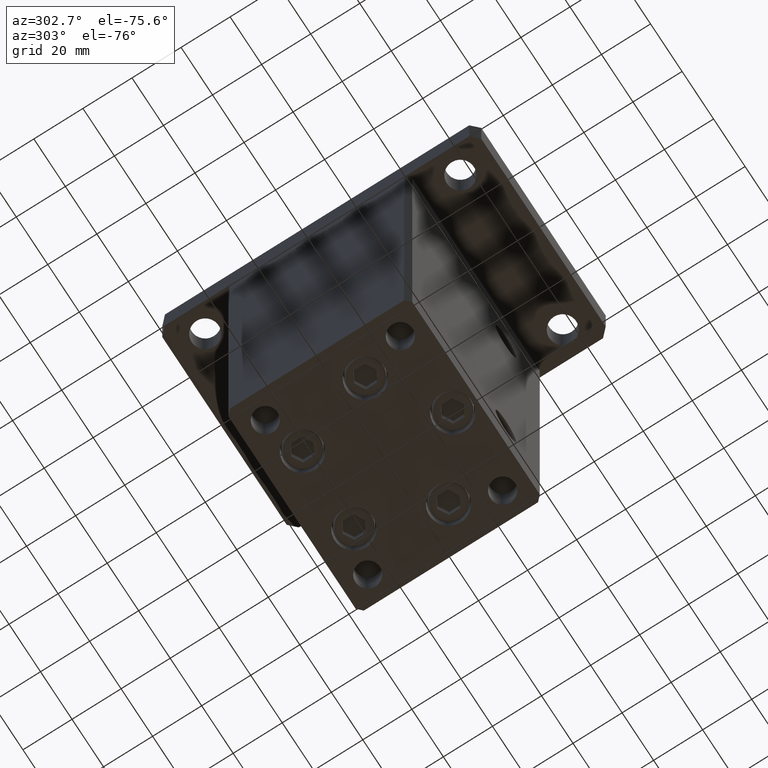
[diagram: clean part render]
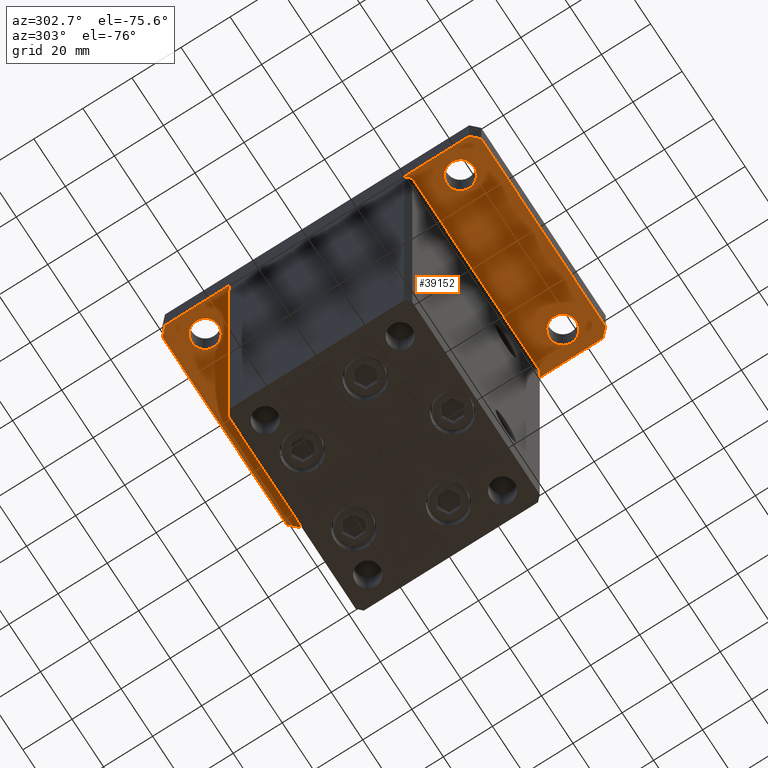
[diagram: same view with one face highlighted and labeled with its STEP entity id]
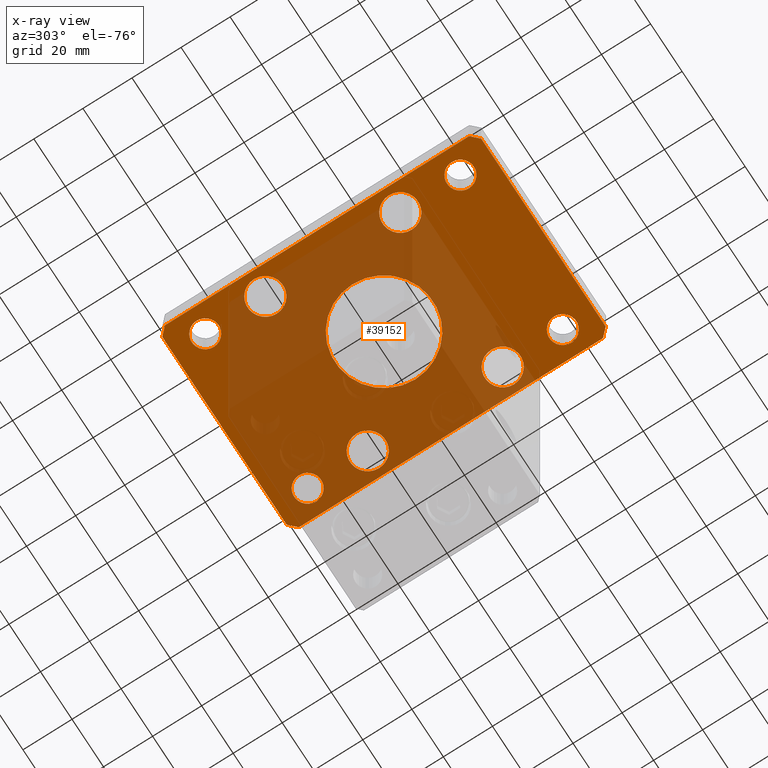
[diagram: x-ray of the same camera — body ghosted, the highlighted face saturated]
A machine part, auxiliary view. The second image highlights one B-rep face of the part: STEP entity #39152.
The next image is the same camera in x-ray: the body ghosted, the highlighted face saturated — about 60% of this face is hidden behind the body in this view.
In plain terms, the highlighted planar face has unit normal (0, 0, 1).
Its self-contained STEP definition (entity closure, byte-faithful):
#19 = VECTOR ( 'NONE', #7143, 1000.000000000000000 ) ;
#65 = AXIS2_PLACEMENT_3D ( 'NONE', #47039, #43976, #22334 ) ;
#127 = EDGE_CURVE ( 'NONE', #19768, #1830, #7025, .T. ) ;
#265 = VERTEX_POINT ( 'NONE', #36979 ) ;
#565 = EDGE_CURVE ( 'NONE', #48855, #39810, #50354, .T. ) ;
#628 = DIRECTION ( 'NONE',  ( 0.000000000000000000, 0.000000000000000000, 1.000000000000000000 ) ) ;
#707 = CARTESIAN_POINT ( 'NONE',  ( -32.50000000000000711, 27.50000000000000000, 0.000000000000000000 ) ) ;
#854 = DIRECTION ( 'NONE',  ( 0.000000000000000000, 0.000000000000000000, -1.000000000000000000 ) ) ;
#901 = EDGE_CURVE ( 'NONE', #13390, #23110, #33889, .T. ) ;
#945 = AXIS2_PLACEMENT_3D ( 'NONE', #18526, #23388, #14714 ) ;
#1048 = VERTEX_POINT ( 'NONE', #31906 ) ;
#1206 = LINE ( 'NONE', #4735, #49276 ) ;
#1710 = EDGE_CURVE ( 'NONE', #48208, #8354, #1879, .T. ) ;
#1830 = VERTEX_POINT ( 'NONE', #51775 ) ;
#1879 = CIRCLE ( 'NONE', #46050, 7.249999999999999112 ) ;
#2310 = LINE ( 'NONE', #42999, #30860 ) ;
#2852 = EDGE_LOOP ( 'NONE', ( #25771, #3525 ) ) ;
#2888 = ORIENTED_EDGE ( 'NONE', *, *, #8356, .F. ) ;
#3035 = CARTESIAN_POINT ( 'NONE',  ( -27.00000000000000711, 52.00000000000000000, 0.000000000000000000 ) ) ;
#3389 = FACE_BOUND ( 'NONE', #2852, .T. ) ;
#3525 = ORIENTED_EDGE ( 'NONE', *, *, #7722, .T. ) ;
#3640 = EDGE_LOOP ( 'NONE', ( #12136, #36797 ) ) ;
#3911 = CIRCLE ( 'NONE', #35073, 7.249999999999999112 ) ;
#4021 = DIRECTION ( 'NONE',  ( 1.000000000000000000, 0.000000000000000000, 0.000000000000000000 ) ) ;
#4322 = CARTESIAN_POINT ( 'NONE',  ( 42.50000000000000000, -61.99999999999988631, 0.000000000000000000 ) ) ;
#4421 = DIRECTION ( 'NONE',  ( 1.000000000000000000, 0.000000000000000000, 0.000000000000000000 ) ) ;
#4518 = VERTEX_POINT ( 'NONE', #15258 ) ;
#4613 = EDGE_CURVE ( 'NONE', #13335, #43913, #34741, .T. ) ;
#4735 = CARTESIAN_POINT ( 'NONE',  ( -42.50000000000002132, 62.00000000000000711, 0.000000000000000000 ) ) ;
#5045 = ORIENTED_EDGE ( 'NONE', *, *, #4613, .F. ) ;
#5390 = ORIENTED_EDGE ( 'NONE', *, *, #565, .F. ) ;
#5427 = DIRECTION ( 'NONE',  ( 0.000000000000000000, 0.000000000000000000, 1.000000000000000000 ) ) ;
#5589 = AXIS2_PLACEMENT_3D ( 'NONE', #12123, #36545, #19973 ) ;
#6302 = CARTESIAN_POINT ( 'NONE',  ( -37.99999999999997868, -52.00000000000000711, 0.000000000000000000 ) ) ;
#6339 = ORIENTED_EDGE ( 'NONE', *, *, #28293, .T. ) ;
#6950 = VERTEX_POINT ( 'NONE', #4322 ) ;
#7025 = CIRCLE ( 'NONE', #11370, 7.249999999999999112 ) ;
#7043 = ORIENTED_EDGE ( 'NONE', *, *, #19839, .F. ) ;
#7143 = DIRECTION ( 'NONE',  ( 0.000000000000000000, 1.000000000000000000, 0.000000000000000000 ) ) ;
#7340 = DIRECTION ( 'NONE',  ( 0.000000000000000000, 0.000000000000000000, 1.000000000000000000 ) ) ;
#7722 = EDGE_CURVE ( 'NONE', #265, #33820, #3911, .T. ) ;
#7727 = VERTEX_POINT ( 'NONE', #32813 ) ;
#7874 = CARTESIAN_POINT ( 'NONE',  ( 32.50000000000000000, -27.50000000000000000, 0.000000000000000000 ) ) ;
#8354 = VERTEX_POINT ( 'NONE', #19413 ) ;
#8356 = EDGE_CURVE ( 'NONE', #43913, #39891, #19937, .T. ) ;
#8920 = ORIENTED_EDGE ( 'NONE', *, *, #37833, .F. ) ;
#9107 = AXIS2_PLACEMENT_3D ( 'NONE', #17676, #50241, #22005 ) ;
#9677 = EDGE_CURVE ( 'NONE', #23738, #48242, #1206, .T. ) ;
#10174 = DIRECTION ( 'NONE',  ( 1.000000000000000000, 1.405345600791337191E-15, 0.000000000000000000 ) ) ;
#10376 = CIRCLE ( 'NONE', #51956, 7.249999999999999112 ) ;
#10710 = CARTESIAN_POINT ( 'NONE',  ( 0.000000000000000000, 0.000000000000000000, 0.000000000000000000 ) ) ;
#11126 = ORIENTED_EDGE ( 'NONE', *, *, #42077, .F. ) ;
#11370 = AXIS2_PLACEMENT_3D ( 'NONE', #38084, #26138, #21798 ) ;
#12019 = EDGE_LOOP ( 'NONE', ( #8920, #11126, #12978, #15604, #2888, #5045, #32016, #17187 ) ) ;
#12110 = VECTOR ( 'NONE', #24458, 1000.000000000000000 ) ;
#12123 = CARTESIAN_POINT ( 'NONE',  ( -32.50000000000000711, 27.50000000000000000, 0.000000000000000000 ) ) ;
#12136 = ORIENTED_EDGE ( 'NONE', *, *, #14207, .T. ) ;
#12223 = VERTEX_POINT ( 'NONE', #28214 ) ;
#12275 = DIRECTION ( 'NONE',  ( 1.000000000000000000, 0.000000000000000000, 0.000000000000000000 ) ) ;
#12560 = DIRECTION ( 'NONE',  ( 0.000000000000000000, 0.000000000000000000, -1.000000000000000000 ) ) ;
#12978 = ORIENTED_EDGE ( 'NONE', *, *, #9677, .F. ) ;
#13335 = VERTEX_POINT ( 'NONE', #17873 ) ;
#13390 = VERTEX_POINT ( 'NONE', #26539 ) ;
#13815 = EDGE_CURVE ( 'NONE', #21513, #7727, #42501, .T. ) ;
#14136 = VERTEX_POINT ( 'NONE', #30852 ) ;
#14207 = EDGE_CURVE ( 'NONE', #1830, #19768, #38190, .T. ) ;
#14309 = EDGE_CURVE ( 'NONE', #24782, #1048, #40802, .T. ) ;
#14366 = EDGE_CURVE ( 'NONE', #14136, #16048, #52053, .T. ) ;
#14714 = DIRECTION ( 'NONE',  ( 1.000000000000000000, 0.000000000000000000, 0.000000000000000000 ) ) ;
#14759 = FACE_OUTER_BOUND ( 'NONE', #12019, .T. ) ;
#15028 = CARTESIAN_POINT ( 'NONE',  ( -25.25000000000000000, -27.50000000000000000, 0.000000000000000000 ) ) ;
#15258 = CARTESIAN_POINT ( 'NONE',  ( -26.99999999999998579, -52.00000000000000711, 0.000000000000000000 ) ) ;
#15386 = CARTESIAN_POINT ( 'NONE',  ( 20.00000000000000000, 2.449293598294706513E-15, 0.000000000000000000 ) ) ;
#15604 = ORIENTED_EDGE ( 'NONE', *, *, #15820, .F. ) ;
#15646 = CARTESIAN_POINT ( 'NONE',  ( 32.50000000000000000, 27.50000000000000000, 0.000000000000000000 ) ) ;
#15727 = CARTESIAN_POINT ( 'NONE',  ( -25.25000000000000711, 27.50000000000000000, 0.000000000000000000 ) ) ;
#15820 = EDGE_CURVE ( 'NONE', #39891, #23738, #19848, .T. ) ;
#15857 = FACE_BOUND ( 'NONE', #46281, .T. ) ;
#15993 = EDGE_LOOP ( 'NONE', ( #22435, #39476 ) ) ;
#16048 = VERTEX_POINT ( 'NONE', #15727 ) ;
#16478 = EDGE_CURVE ( 'NONE', #6950, #13335, #52980, .T. ) ;
#17187 = ORIENTED_EDGE ( 'NONE', *, *, #28346, .F. ) ;
#17376 = CIRCLE ( 'NONE', #945, 7.249999999999999112 ) ;
#17379 = VERTEX_POINT ( 'NONE', #40355 ) ;
#17388 = CARTESIAN_POINT ( 'NONE',  ( 25.25000000000000000, -27.50000000000000000, 0.000000000000000000 ) ) ;
#17661 = DIRECTION ( 'NONE',  ( -1.000000000000000000, 0.000000000000000000, 0.000000000000000000 ) ) ;
#17676 = CARTESIAN_POINT ( 'NONE',  ( -32.50000000000000000, 52.00000000000000000, 0.000000000000000000 ) ) ;
#17873 = CARTESIAN_POINT ( 'NONE',  ( 42.50000000000000000, 62.00000000000000711, 0.000000000000000000 ) ) ;
#18313 = AXIS2_PLACEMENT_3D ( 'NONE', #22942, #19147, #38976 ) ;
#18405 = ORIENTED_EDGE ( 'NONE', *, *, #901, .T. ) ;
#18526 = CARTESIAN_POINT ( 'NONE',  ( 32.50000000000000000, -27.50000000000000000, 0.000000000000000000 ) ) ;
#18620 = CIRCLE ( 'NONE', #9107, 5.499999999999994671 ) ;
#19129 = CARTESIAN_POINT ( 'NONE',  ( -32.49999999999997868, -52.00000000000000711, 0.000000000000000000 ) ) ;
#19147 = DIRECTION ( 'NONE',  ( 0.000000000000000000, 0.000000000000000000, 1.000000000000000000 ) ) ;
#19258 = CARTESIAN_POINT ( 'NONE',  ( 32.50000000000000000, 51.99999999999999289, 0.000000000000000000 ) ) ;
#19413 = CARTESIAN_POINT ( 'NONE',  ( -39.75000000000000000, -27.50000000000000000, 0.000000000000000000 ) ) ;
#19579 = EDGE_CURVE ( 'NONE', #33820, #265, #17376, .T. ) ;
#19714 = EDGE_LOOP ( 'NONE', ( #5390, #7043 ) ) ;
#19768 = VERTEX_POINT ( 'NONE', #21987 ) ;
#19839 = EDGE_CURVE ( 'NONE', #39810, #48855, #33927, .T. ) ;
#19848 = LINE ( 'NONE', #48899, #12110 ) ;
#19907 = FACE_BOUND ( 'NONE', #3640, .T. ) ;
#19937 = LINE ( 'NONE', #32699, #22663 ) ;
#19973 = DIRECTION ( 'NONE',  ( 1.000000000000000000, 0.000000000000000000, 0.000000000000000000 ) ) ;
#19989 = AXIS2_PLACEMENT_3D ( 'NONE', #15646, #32201, #35732 ) ;
#20128 = CARTESIAN_POINT ( 'NONE',  ( 32.49999999999997868, -52.00000000000000711, 0.000000000000000000 ) ) ;
#20391 = DIRECTION ( 'NONE',  ( 0.000000000000000000, 0.000000000000000000, 1.000000000000000000 ) ) ;
#20924 = CARTESIAN_POINT ( 'NONE',  ( 0.000000000000000000, 0.000000000000000000, 0.000000000000000000 ) ) ;
#21351 = AXIS2_PLACEMENT_3D ( 'NONE', #10710, #27237, #43798 ) ;
#21513 = VERTEX_POINT ( 'NONE', #3035 ) ;
#21672 = AXIS2_PLACEMENT_3D ( 'NONE', #707, #46274, #51132 ) ;
#21696 = CARTESIAN_POINT ( 'NONE',  ( 37.99999999999999289, 51.99999999999999289, 0.000000000000000000 ) ) ;
#21798 = DIRECTION ( 'NONE',  ( 1.000000000000000000, 0.000000000000000000, 0.000000000000000000 ) ) ;
#21947 = DIRECTION ( 'NONE',  ( 1.000000000000000000, 0.000000000000000000, 0.000000000000000000 ) ) ;
#21979 = AXIS2_PLACEMENT_3D ( 'NONE', #19258, #7340, #24126 ) ;
#21987 = CARTESIAN_POINT ( 'NONE',  ( 39.75000000000000000, 27.50000000000000000, 0.000000000000000000 ) ) ;
#22005 = DIRECTION ( 'NONE',  ( 1.000000000000000000, 0.000000000000000000, 0.000000000000000000 ) ) ;
#22058 = ORIENTED_EDGE ( 'NONE', *, *, #26722, .T. ) ;
#22334 = DIRECTION ( 'NONE',  ( 1.000000000000000000, 0.000000000000000000, 0.000000000000000000 ) ) ;
#22435 = ORIENTED_EDGE ( 'NONE', *, *, #14366, .T. ) ;
#22663 = VECTOR ( 'NONE', #31893, 1000.000000000000000 ) ;
#22942 = CARTESIAN_POINT ( 'NONE',  ( 32.49999999999997868, -52.00000000000000711, 0.000000000000000000 ) ) ;
#23110 = VERTEX_POINT ( 'NONE', #50668 ) ;
#23388 = DIRECTION ( 'NONE',  ( 0.000000000000000000, 0.000000000000000000, 1.000000000000000000 ) ) ;
#23703 = CIRCLE ( 'NONE', #50580, 5.499999999999994671 ) ;
#23738 = VERTEX_POINT ( 'NONE', #35588 ) ;
#23745 = DIRECTION ( 'NONE',  ( 1.000000000000000000, 0.000000000000000000, 0.000000000000000000 ) ) ;
#23983 = FACE_BOUND ( 'NONE', #46018, .T. ) ;
#24126 = DIRECTION ( 'NONE',  ( 1.000000000000000000, 0.000000000000000000, 0.000000000000000000 ) ) ;
#24131 = DIRECTION ( 'NONE',  ( 0.000000000000000000, 0.000000000000000000, 1.000000000000000000 ) ) ;
#24446 = CARTESIAN_POINT ( 'NONE',  ( -42.49999999999999289, -62.00000000000001421, 0.000000000000000000 ) ) ;
#24458 = DIRECTION ( 'NONE',  ( -0.7071067811865466846, -0.7071067811865483499, 0.000000000000000000 ) ) ;
#24782 = VERTEX_POINT ( 'NONE', #21696 ) ;
#25216 = CIRCLE ( 'NONE', #46037, 5.499999999999994671 ) ;
#25595 = DIRECTION ( 'NONE',  ( 2.238352872228137677E-16, -1.000000000000000000, 0.000000000000000000 ) ) ;
#25771 = ORIENTED_EDGE ( 'NONE', *, *, #19579, .T. ) ;
#26119 = EDGE_CURVE ( 'NONE', #23110, #13390, #35793, .T. ) ;
#26138 = DIRECTION ( 'NONE',  ( 0.000000000000000000, 0.000000000000000000, 1.000000000000000000 ) ) ;
#26466 = CARTESIAN_POINT ( 'NONE',  ( 42.50000000000000000, -61.99999999999988631, 0.000000000000000000 ) ) ;
#26539 = CARTESIAN_POINT ( 'NONE',  ( 37.99999999999997868, -52.00000000000000711, 0.000000000000000000 ) ) ;
#26558 = ORIENTED_EDGE ( 'NONE', *, *, #26119, .T. ) ;
#26722 = EDGE_CURVE ( 'NONE', #37407, #4518, #23703, .T. ) ;
#26844 = DIRECTION ( 'NONE',  ( -0.7071067811865417996, 0.7071067811865532349, 0.000000000000000000 ) ) ;
#27237 = DIRECTION ( 'NONE',  ( 0.000000000000000000, 0.000000000000000000, 1.000000000000000000 ) ) ;
#27508 = FACE_BOUND ( 'NONE', #46515, .T. ) ;
#27932 = LINE ( 'NONE', #36352, #52329 ) ;
#28214 = CARTESIAN_POINT ( 'NONE',  ( -39.50000000000000000, -65.00000000000000000, 0.000000000000000000 ) ) ;
#28293 = EDGE_CURVE ( 'NONE', #1048, #24782, #47128, .T. ) ;
#28346 = EDGE_CURVE ( 'NONE', #17379, #6950, #27932, .T. ) ;
#28695 = CARTESIAN_POINT ( 'NONE',  ( -32.49999999999997868, -52.00000000000000711, 0.000000000000000000 ) ) ;
#29580 = AXIS2_PLACEMENT_3D ( 'NONE', #37244, #12560, #49987 ) ;
#30103 = EDGE_CURVE ( 'NONE', #7727, #21513, #18620, .T. ) ;
#30813 = EDGE_LOOP ( 'NONE', ( #42243, #45279 ) ) ;
#30852 = CARTESIAN_POINT ( 'NONE',  ( -39.75000000000000711, 27.50000000000000000, 0.000000000000000000 ) ) ;
#30860 = VECTOR ( 'NONE', #10174, 1000.000000000000000 ) ;
#31317 = FACE_BOUND ( 'NONE', #30813, .T. ) ;
#31672 = ORIENTED_EDGE ( 'NONE', *, *, #13815, .T. ) ;
#31893 = DIRECTION ( 'NONE',  ( -1.000000000000000000, -3.513364001978340512E-16, 0.000000000000000000 ) ) ;
#31906 = CARTESIAN_POINT ( 'NONE',  ( 27.00000000000001421, 51.99999999999999289, 0.000000000000000000 ) ) ;
#32016 = ORIENTED_EDGE ( 'NONE', *, *, #16478, .F. ) ;
#32201 = DIRECTION ( 'NONE',  ( 0.000000000000000000, 0.000000000000000000, 1.000000000000000000 ) ) ;
#32699 = CARTESIAN_POINT ( 'NONE',  ( 39.50000000000002842, 65.00000000000002842, 0.000000000000000000 ) ) ;
#32808 = EDGE_CURVE ( 'NONE', #16048, #14136, #48015, .T. ) ;
#32813 = CARTESIAN_POINT ( 'NONE',  ( -38.00000000000000000, 52.00000000000000000, 0.000000000000000000 ) ) ;
#33202 = AXIS2_PLACEMENT_3D ( 'NONE', #20128, #20391, #12275 ) ;
#33820 = VERTEX_POINT ( 'NONE', #17388 ) ;
#33889 = CIRCLE ( 'NONE', #18313, 5.499999999999998224 ) ;
#33927 = CIRCLE ( 'NONE', #51241, 20.00000000000000000 ) ;
#34741 = LINE ( 'NONE', #42337, #49624 ) ;
#34748 = CARTESIAN_POINT ( 'NONE',  ( 39.50000000000002842, 65.00000000000002842, 0.000000000000000000 ) ) ;
#35073 = AXIS2_PLACEMENT_3D ( 'NONE', #7874, #24131, #53177 ) ;
#35588 = CARTESIAN_POINT ( 'NONE',  ( -42.50000000000002132, 62.00000000000000711, 0.000000000000000000 ) ) ;
#35622 = EDGE_LOOP ( 'NONE', ( #47627, #31672 ) ) ;
#35694 = DIRECTION ( 'NONE',  ( 0.000000000000000000, 0.000000000000000000, 1.000000000000000000 ) ) ;
#35732 = DIRECTION ( 'NONE',  ( 1.000000000000000000, 0.000000000000000000, 0.000000000000000000 ) ) ;
#35793 = CIRCLE ( 'NONE', #33202, 5.499999999999998224 ) ;
#36352 = CARTESIAN_POINT ( 'NONE',  ( 39.50000000000001421, -64.99999999999988631, 0.000000000000000000 ) ) ;
#36545 = DIRECTION ( 'NONE',  ( 0.000000000000000000, 0.000000000000000000, 1.000000000000000000 ) ) ;
#36797 = ORIENTED_EDGE ( 'NONE', *, *, #127, .T. ) ;
#36812 = DIRECTION ( 'NONE',  ( 0.000000000000000000, 0.000000000000000000, 1.000000000000000000 ) ) ;
#36940 = DIRECTION ( 'NONE',  ( 0.7071067811865483499, -0.7071067811865466846, 0.000000000000000000 ) ) ;
#36979 = CARTESIAN_POINT ( 'NONE',  ( 39.75000000000000000, -27.50000000000000000, 0.000000000000000000 ) ) ;
#37244 = CARTESIAN_POINT ( 'NONE',  ( 0.000000000000000000, 0.000000000000000000, 0.000000000000000000 ) ) ;
#37407 = VERTEX_POINT ( 'NONE', #6302 ) ;
#37616 = CARTESIAN_POINT ( 'NONE',  ( -39.50000000000003553, 65.00000000000000000, 0.000000000000000000 ) ) ;
#37833 = EDGE_CURVE ( 'NONE', #12223, #17379, #2310, .T. ) ;
#38084 = CARTESIAN_POINT ( 'NONE',  ( 32.50000000000000000, 27.50000000000000000, 0.000000000000000000 ) ) ;
#38190 = CIRCLE ( 'NONE', #19989, 7.249999999999999112 ) ;
#38976 = DIRECTION ( 'NONE',  ( 1.000000000000000000, 0.000000000000000000, 0.000000000000000000 ) ) ;
#39152 = ADVANCED_FACE ( 'NONE', ( #44621, #14759, #23983, #27508, #40543, #31317, #3389, #19907, #53028, #15857 ), #43530, .F. ) ;
#39476 = ORIENTED_EDGE ( 'NONE', *, *, #32808, .T. ) ;
#39648 = VECTOR ( 'NONE', #36940, 1000.000000000000000 ) ;
#39810 = VERTEX_POINT ( 'NONE', #15386 ) ;
#39891 = VERTEX_POINT ( 'NONE', #37616 ) ;
#40162 = DIRECTION ( 'NONE',  ( 0.7071067811865459074, 0.7071067811865491270, 0.000000000000000000 ) ) ;
#40355 = CARTESIAN_POINT ( 'NONE',  ( 39.50000000000001421, -64.99999999999988631, 0.000000000000000000 ) ) ;
#40543 = FACE_BOUND ( 'NONE', #35622, .T. ) ;
#40802 = CIRCLE ( 'NONE', #51168, 5.499999999999991118 ) ;
#41183 = DIRECTION ( 'NONE',  ( 0.000000000000000000, 0.000000000000000000, 1.000000000000000000 ) ) ;
#41200 = CARTESIAN_POINT ( 'NONE',  ( -20.00000000000000000, 0.000000000000000000, 0.000000000000000000 ) ) ;
#41536 = ORIENTED_EDGE ( 'NONE', *, *, #52925, .T. ) ;
#42077 = EDGE_CURVE ( 'NONE', #48242, #12223, #45602, .T. ) ;
#42243 = ORIENTED_EDGE ( 'NONE', *, *, #47298, .T. ) ;
#42337 = CARTESIAN_POINT ( 'NONE',  ( 42.50000000000000000, 62.00000000000000711, 0.000000000000000000 ) ) ;
#42501 = CIRCLE ( 'NONE', #65, 5.499999999999994671 ) ;
#42999 = CARTESIAN_POINT ( 'NONE',  ( -39.50000000000000000, -65.00000000000000000, 0.000000000000000000 ) ) ;
#43530 = PLANE ( 'NONE',  #21351 ) ;
#43798 = DIRECTION ( 'NONE',  ( 1.000000000000000000, 0.000000000000000000, -0.000000000000000000 ) ) ;
#43913 = VERTEX_POINT ( 'NONE', #34748 ) ;
#43976 = DIRECTION ( 'NONE',  ( 0.000000000000000000, 0.000000000000000000, 1.000000000000000000 ) ) ;
#44621 = FACE_BOUND ( 'NONE', #19714, .T. ) ;
#44937 = ORIENTED_EDGE ( 'NONE', *, *, #14309, .T. ) ;
#45123 = CARTESIAN_POINT ( 'NONE',  ( -32.50000000000000000, -27.50000000000000000, 0.000000000000000000 ) ) ;
#45279 = ORIENTED_EDGE ( 'NONE', *, *, #1710, .T. ) ;
#45475 = CARTESIAN_POINT ( 'NONE',  ( 32.50000000000000000, 51.99999999999999289, 0.000000000000000000 ) ) ;
#45602 = LINE ( 'NONE', #24446, #39648 ) ;
#46002 = DIRECTION ( 'NONE',  ( 1.000000000000000000, 0.000000000000000000, 0.000000000000000000 ) ) ;
#46018 = EDGE_LOOP ( 'NONE', ( #22058, #41536 ) ) ;
#46037 = AXIS2_PLACEMENT_3D ( 'NONE', #28695, #41183, #4021 ) ;
#46050 = AXIS2_PLACEMENT_3D ( 'NONE', #47436, #5427, #21947 ) ;
#46274 = DIRECTION ( 'NONE',  ( 0.000000000000000000, 0.000000000000000000, 1.000000000000000000 ) ) ;
#46281 = EDGE_LOOP ( 'NONE', ( #26558, #18405 ) ) ;
#46515 = EDGE_LOOP ( 'NONE', ( #6339, #44937 ) ) ;
#47039 = CARTESIAN_POINT ( 'NONE',  ( -32.50000000000000000, 52.00000000000000000, 0.000000000000000000 ) ) ;
#47128 = CIRCLE ( 'NONE', #21979, 5.499999999999991118 ) ;
#47298 = EDGE_CURVE ( 'NONE', #8354, #48208, #10376, .T. ) ;
#47436 = CARTESIAN_POINT ( 'NONE',  ( -32.50000000000000000, -27.50000000000000000, 0.000000000000000000 ) ) ;
#47627 = ORIENTED_EDGE ( 'NONE', *, *, #30103, .T. ) ;
#48015 = CIRCLE ( 'NONE', #5589, 7.249999999999999112 ) ;
#48208 = VERTEX_POINT ( 'NONE', #15028 ) ;
#48242 = VERTEX_POINT ( 'NONE', #53013 ) ;
#48855 = VERTEX_POINT ( 'NONE', #41200 ) ;
#48899 = CARTESIAN_POINT ( 'NONE',  ( -39.50000000000003553, 65.00000000000000000, 0.000000000000000000 ) ) ;
#49276 = VECTOR ( 'NONE', #25595, 1000.000000000000000 ) ;
#49624 = VECTOR ( 'NONE', #26844, 1000.000000000000000 ) ;
#49987 = DIRECTION ( 'NONE',  ( -1.000000000000000000, 0.000000000000000000, 0.000000000000000000 ) ) ;
#50241 = DIRECTION ( 'NONE',  ( 0.000000000000000000, 0.000000000000000000, 1.000000000000000000 ) ) ;
#50354 = CIRCLE ( 'NONE', #29580, 20.00000000000000000 ) ;
#50580 = AXIS2_PLACEMENT_3D ( 'NONE', #19129, #35694, #23745 ) ;
#50668 = CARTESIAN_POINT ( 'NONE',  ( 26.99999999999998579, -52.00000000000000711, 0.000000000000000000 ) ) ;
#51132 = DIRECTION ( 'NONE',  ( 1.000000000000000000, 0.000000000000000000, 0.000000000000000000 ) ) ;
#51168 = AXIS2_PLACEMENT_3D ( 'NONE', #45475, #36812, #46002 ) ;
#51241 = AXIS2_PLACEMENT_3D ( 'NONE', #20924, #854, #17661 ) ;
#51775 = CARTESIAN_POINT ( 'NONE',  ( 25.25000000000000000, 27.50000000000000000, 0.000000000000000000 ) ) ;
#51956 = AXIS2_PLACEMENT_3D ( 'NONE', #45123, #628, #4421 ) ;
#52053 = CIRCLE ( 'NONE', #21672, 7.249999999999999112 ) ;
#52329 = VECTOR ( 'NONE', #40162, 1000.000000000000114 ) ;
#52925 = EDGE_CURVE ( 'NONE', #4518, #37407, #25216, .T. ) ;
#52980 = LINE ( 'NONE', #26466, #19 ) ;
#53013 = CARTESIAN_POINT ( 'NONE',  ( -42.49999999999999289, -62.00000000000001421, 0.000000000000000000 ) ) ;
#53028 = FACE_BOUND ( 'NONE', #15993, .T. ) ;
#53177 = DIRECTION ( 'NONE',  ( 1.000000000000000000, 0.000000000000000000, 0.000000000000000000 ) ) ;